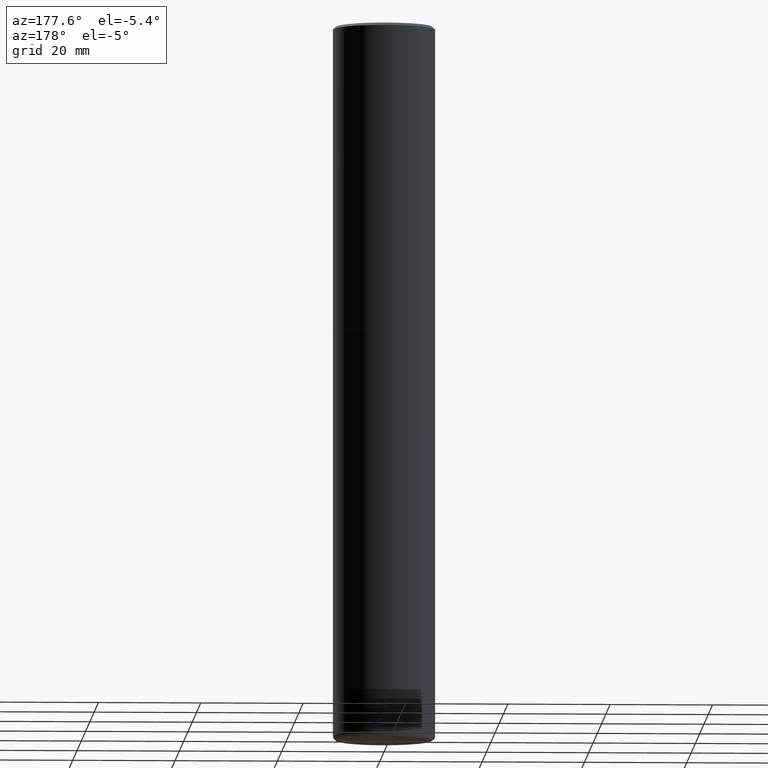
[diagram: clean part render]
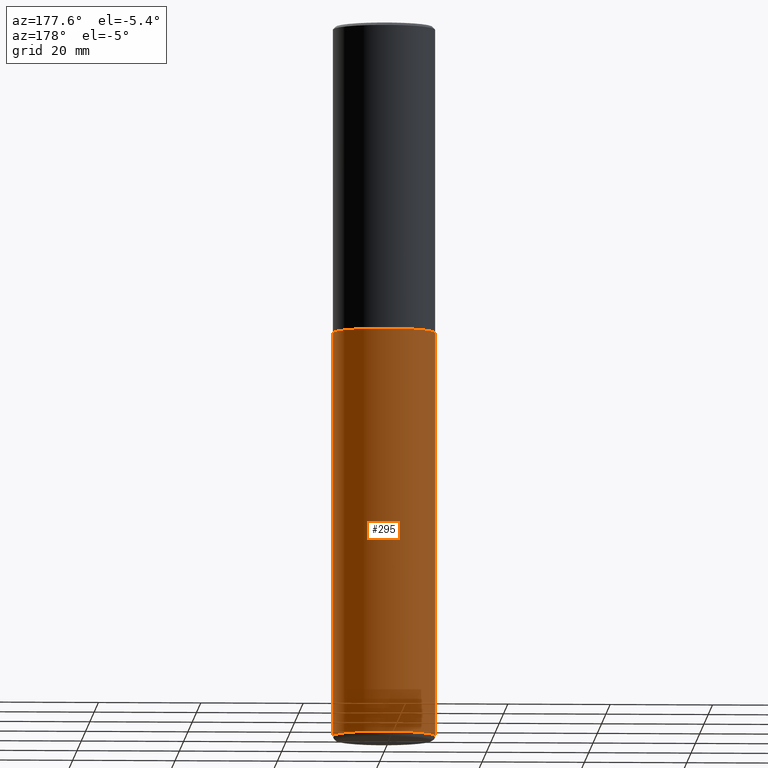
[diagram: same view with one face highlighted and labeled with its STEP entity id]
A machine part, auxiliary view. The second image highlights one B-rep face of the part: STEP entity #295.
In plain terms, the highlighted cylindrical surface (partial cylindrical patch) has radius 10 mm, axis along (-0, 0, 1).
Its self-contained STEP definition (entity closure, byte-faithful):
#13 = CARTESIAN_POINT ( 'NONE',  ( 1.338258349496754075E-28, -1.910678247868523272E-14, -5.472400000000000375 ) ) ;
#27 = CIRCLE ( 'NONE', #379, 0.3937000000000000499 ) ;
#28 = DIRECTION ( 'NONE',  ( -2.445468806185136877E-29, 3.491481338843145188E-15, 1.000000000000000000 ) ) ;
#88 = DIRECTION ( 'NONE',  ( -2.445468806185136597E-29, 3.491481338843145583E-15, 1.000000000000000000 ) ) ;
#90 = DIRECTION ( 'NONE',  ( -2.445468806185136597E-29, 3.491481338843145583E-15, 1.000000000000000000 ) ) ;
#92 = VECTOR ( 'NONE', #394, 39.37007874015748143 ) ;
#93 = VERTEX_POINT ( 'NONE', #174 ) ;
#118 = DIRECTION ( 'NONE',  ( 1.000000000000000000, -6.982962677686267499E-15, 0.000000000000000000 ) ) ;
#124 = AXIS2_PLACEMENT_3D ( 'NONE', #157, #88, #188 ) ;
#139 = CARTESIAN_POINT ( 'NONE',  ( 0.3937000000000000499, -1.099676962482036284E-14, -2.362200000000000077 ) ) ;
#142 = VERTEX_POINT ( 'NONE', #139 ) ;
#143 = CARTESIAN_POINT ( 'NONE',  ( -0.3937000000000000499, -1.087977309796274139E-14, -2.362200000000000077 ) ) ;
#145 = VERTEX_POINT ( 'NONE', #143 ) ;
#150 = CARTESIAN_POINT ( 'NONE',  ( -0.3937000000000002164, -1.630937572799771557E-14, -5.472400000000000375 ) ) ;
#153 = LINE ( 'NONE', #281, #207 ) ;
#157 = CARTESIAN_POINT ( 'NONE',  ( 0.000000000000000000, 0.000000000000000000, 0.000000000000000000 ) ) ;
#174 = CARTESIAN_POINT ( 'NONE',  ( 0.3937000000000002164, -2.185597488489031909E-14, -5.472400000000000375 ) ) ;
#188 = DIRECTION ( 'NONE',  ( 1.000000000000000000, -6.982962677686265922E-15, 4.876176775795935793E-29 ) ) ;
#205 = VERTEX_POINT ( 'NONE', #150 ) ;
#207 = VECTOR ( 'NONE', #28, 39.37007874015748143 ) ;
#209 = ORIENTED_EDGE ( 'NONE', *, *, #337, .F. ) ;
#221 = DIRECTION ( 'NONE',  ( 1.000000000000000000, -6.982962677686267499E-15, 0.000000000000000000 ) ) ;
#227 = EDGE_CURVE ( 'NONE', #93, #205, #27, .T. ) ;
#256 = FACE_OUTER_BOUND ( 'NONE', #348, .T. ) ;
#275 = EDGE_CURVE ( 'NONE', #205, #145, #279, .T. ) ;
#279 = LINE ( 'NONE', #369, #92 ) ;
#281 = CARTESIAN_POINT ( 'NONE',  ( 0.3937000000000000499, -2.749192406205083217E-15, 1.919750796630860172E-29 ) ) ;
#283 = EDGE_CURVE ( 'NONE', #142, #145, #329, .T. ) ;
#295 = ADVANCED_FACE ( 'NONE', ( #256 ), #372, .T. ) ;
#306 = AXIS2_PLACEMENT_3D ( 'NONE', #368, #90, #118 ) ;
#324 = ORIENTED_EDGE ( 'NONE', *, *, #283, .F. ) ;
#329 = CIRCLE ( 'NONE', #306, 0.3937000000000000499 ) ;
#337 = EDGE_CURVE ( 'NONE', #93, #142, #153, .T. ) ;
#348 = EDGE_LOOP ( 'NONE', ( #418, #373, #324, #209 ) ) ;
#368 = CARTESIAN_POINT ( 'NONE',  ( 5.776686413970529753E-29, -8.247577218615279626E-15, -2.362200000000000077 ) ) ;
#369 = CARTESIAN_POINT ( 'NONE',  ( -0.3937000000000000499, 2.797406750687514786E-15, -1.936584745033356735E-29 ) ) ;
#372 = CYLINDRICAL_SURFACE ( 'NONE', #124, 0.3937000000000000499 ) ;
#373 = ORIENTED_EDGE ( 'NONE', *, *, #275, .T. ) ;
#379 = AXIS2_PLACEMENT_3D ( 'NONE', #13, #393, #221 ) ;
#393 = DIRECTION ( 'NONE',  ( -2.445468806185136597E-29, 3.491481338843145583E-15, 1.000000000000000000 ) ) ;
#394 = DIRECTION ( 'NONE',  ( -2.445468806185136877E-29, 3.491481338843145188E-15, 1.000000000000000000 ) ) ;
#418 = ORIENTED_EDGE ( 'NONE', *, *, #227, .T. ) ;